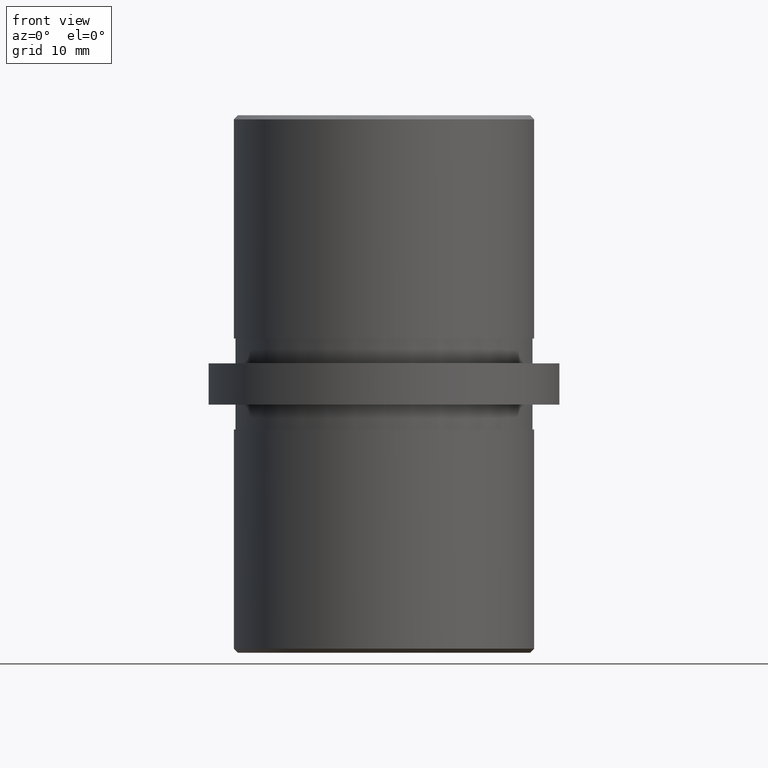
[diagram: clean part render]
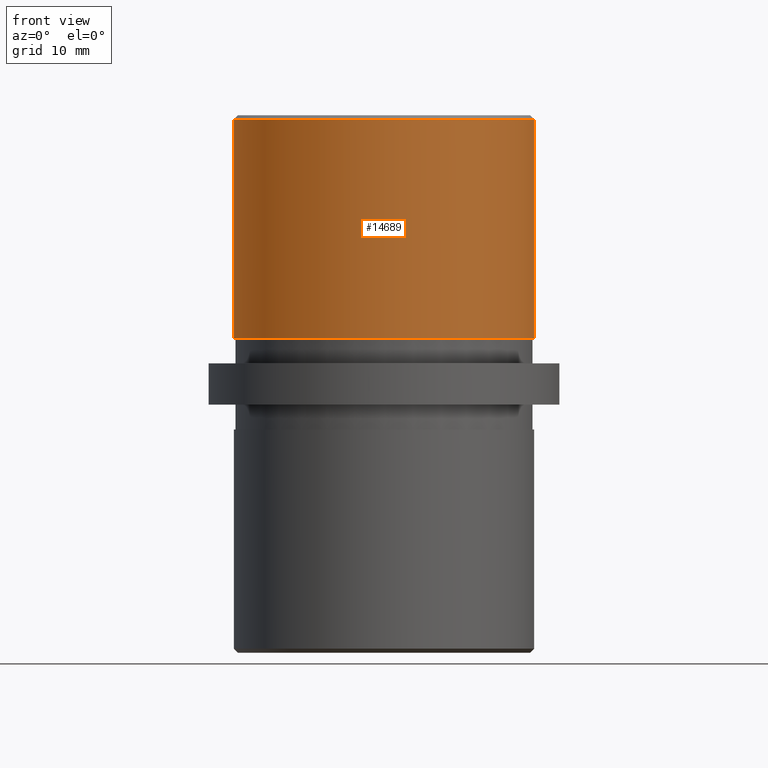
[diagram: same view with one face highlighted and labeled with its STEP entity id]
A machine part, front view. The second image highlights one B-rep face of the part: STEP entity #14689.
In plain terms, the highlighted cylindrical surface (partial cylindrical patch) has radius 18.15 mm, axis along (-0, -0, -1).
Its self-contained STEP definition (entity closure, byte-faithful):
#892 = CARTESIAN_POINT ( 'NONE',  ( 0.0000000000000000000, 0.0000000000000000000, 32.50000000000000000 ) ) ;
#920 = VERTEX_POINT ( 'NONE', #9087 ) ;
#934 = EDGE_CURVE ( 'NONE', #17863, #920, #20376, .T. ) ;
#1777 = LINE ( 'NONE', #8451, #4139 ) ;
#2181 = EDGE_LOOP ( 'NONE', ( #2498, #5574, #9052, #20219 ) ) ;
#2498 = ORIENTED_EDGE ( 'NONE', *, *, #20201, .F. ) ;
#4139 = VECTOR ( 'NONE', #21777, 1000.000000000000000 ) ;
#4350 = DIRECTION ( 'NONE',  ( -1.000000000000000000, 0.0000000000000000000, 0.0000000000000000000 ) ) ;
#5574 = ORIENTED_EDGE ( 'NONE', *, *, #21744, .T. ) ;
#5675 = CARTESIAN_POINT ( 'NONE',  ( 0.0000000000000000000, 0.0000000000000000000, 32.00000000000001400 ) ) ;
#6214 = VECTOR ( 'NONE', #21791, 1000.000000000000000 ) ;
#6565 = CARTESIAN_POINT ( 'NONE',  ( 18.15000000000000600, 2.222733940452446600E-015, 32.50000000000000000 ) ) ;
#7231 = VERTEX_POINT ( 'NONE', #21689 ) ;
#7234 = FACE_OUTER_BOUND ( 'NONE', #2181, .T. ) ;
#7339 = DIRECTION ( 'NONE',  ( 0.0000000000000000000, 0.0000000000000000000, -1.000000000000000000 ) ) ;
#8451 = CARTESIAN_POINT ( 'NONE',  ( -18.15000000000000600, 0.0000000000000000000, 32.50000000000000000 ) ) ;
#9052 = ORIENTED_EDGE ( 'NONE', *, *, #11815, .T. ) ;
#9087 = CARTESIAN_POINT ( 'NONE',  ( 18.15000000000000600, 2.222733940452446600E-015, 5.500000000000000000 ) ) ;
#9931 = AXIS2_PLACEMENT_3D ( 'NONE', #17590, #16060, #19421 ) ;
#11763 = VERTEX_POINT ( 'NONE', #18081 ) ;
#11815 = EDGE_CURVE ( 'NONE', #11763, #17863, #1777, .T. ) ;
#14689 = ADVANCED_FACE ( 'NONE', ( #7234 ), #17742, .T. ) ;
#14985 = CARTESIAN_POINT ( 'NONE',  ( -18.15000000000000600, 0.0000000000000000000, 5.500000000000000000 ) ) ;
#16024 = DIRECTION ( 'NONE',  ( -0.0000000000000000000, -0.0000000000000000000, -1.000000000000000000 ) ) ;
#16060 = DIRECTION ( 'NONE',  ( 0.0000000000000000000, 0.0000000000000000000, 1.000000000000000000 ) ) ;
#17242 = AXIS2_PLACEMENT_3D ( 'NONE', #5675, #7339, #19088 ) ;
#17275 = LINE ( 'NONE', #6565, #6214 ) ;
#17590 = CARTESIAN_POINT ( 'NONE',  ( 0.0000000000000000000, 0.0000000000000000000, 5.500000000000000000 ) ) ;
#17742 = CYLINDRICAL_SURFACE ( 'NONE', #18494, 18.15000000000000600 ) ;
#17863 = VERTEX_POINT ( 'NONE', #14985 ) ;
#18081 = CARTESIAN_POINT ( 'NONE',  ( -18.15000000000000600, 0.0000000000000000000, 32.00000000000001400 ) ) ;
#18494 = AXIS2_PLACEMENT_3D ( 'NONE', #892, #16024, #4350 ) ;
#19088 = DIRECTION ( 'NONE',  ( 1.000000000000000000, 0.0000000000000000000, 0.0000000000000000000 ) ) ;
#19421 = DIRECTION ( 'NONE',  ( 1.000000000000000000, 0.0000000000000000000, 0.0000000000000000000 ) ) ;
#20201 = EDGE_CURVE ( 'NONE', #7231, #920, #17275, .T. ) ;
#20219 = ORIENTED_EDGE ( 'NONE', *, *, #934, .T. ) ;
#20376 = CIRCLE ( 'NONE', #9931, 18.15000000000000600 ) ;
#21441 = CIRCLE ( 'NONE', #17242, 18.15000000000000600 ) ;
#21689 = CARTESIAN_POINT ( 'NONE',  ( 18.15000000000000600, 2.222733940452446600E-015, 32.00000000000001400 ) ) ;
#21744 = EDGE_CURVE ( 'NONE', #7231, #11763, #21441, .T. ) ;
#21777 = DIRECTION ( 'NONE',  ( -0.0000000000000000000, -0.0000000000000000000, -1.000000000000000000 ) ) ;
#21791 = DIRECTION ( 'NONE',  ( -0.0000000000000000000, -0.0000000000000000000, -1.000000000000000000 ) ) ;